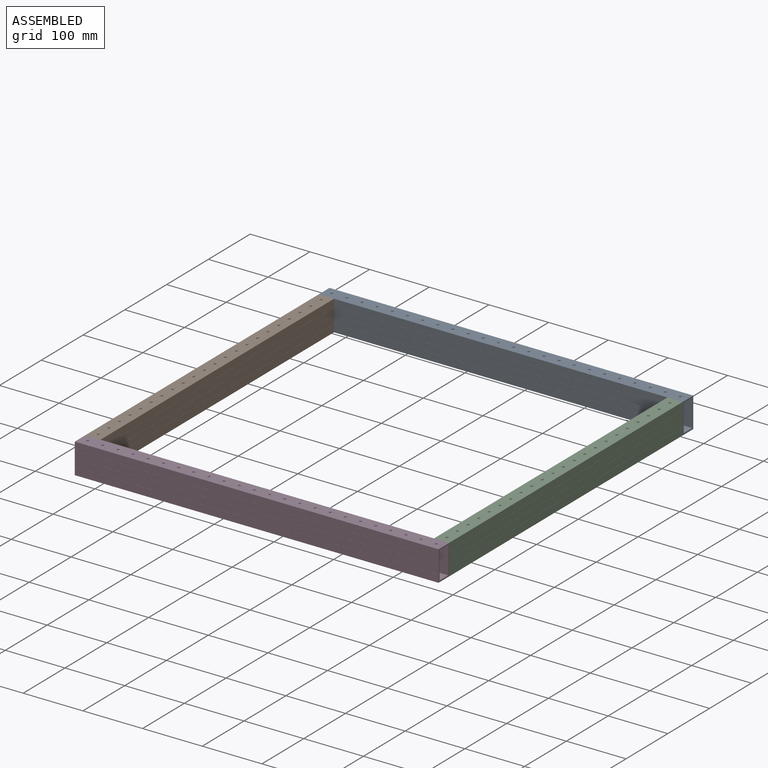
[diagram: assembled view]
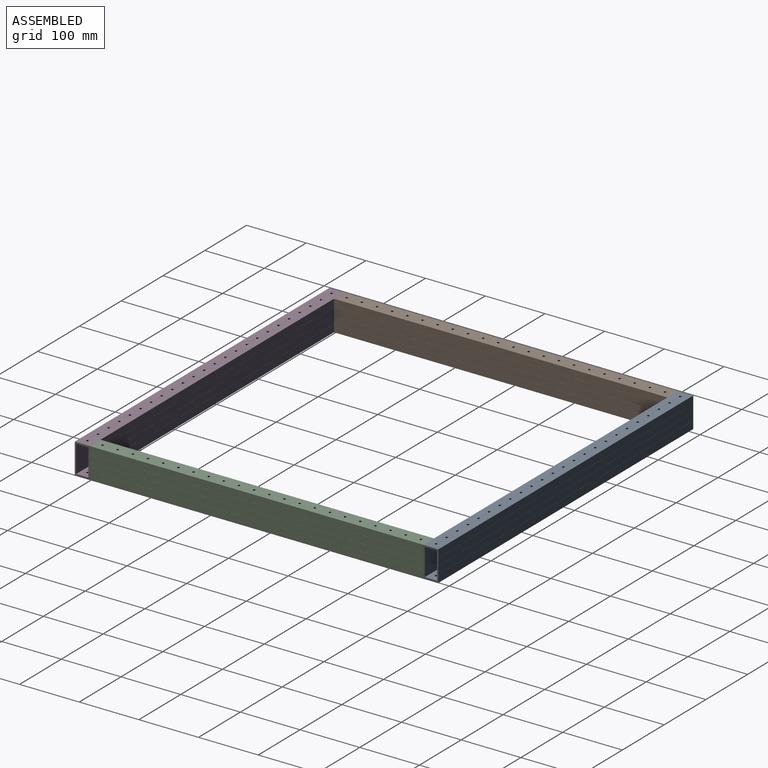
[diagram: assembled view, second angle]
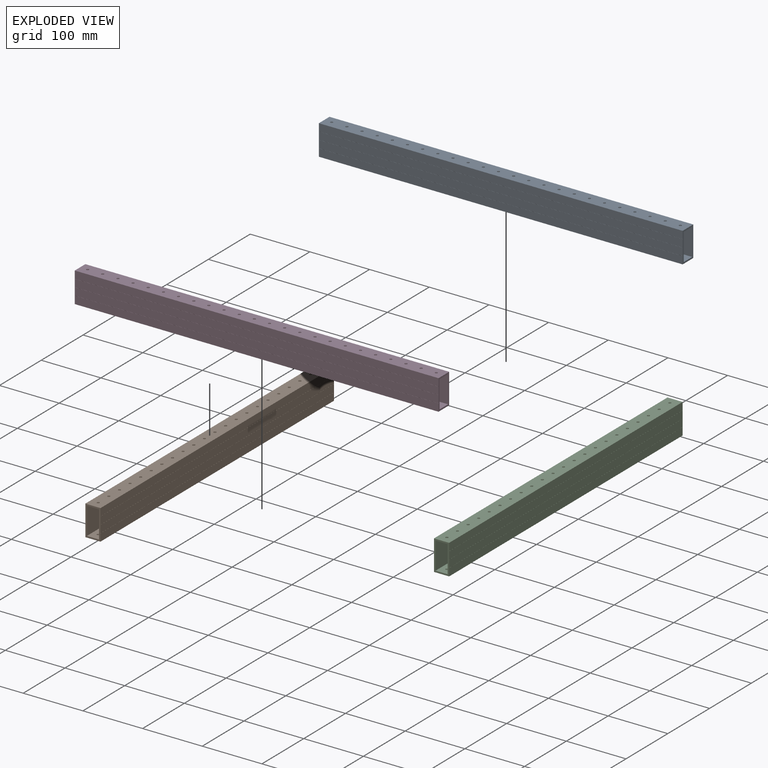
[diagram: exploded view]
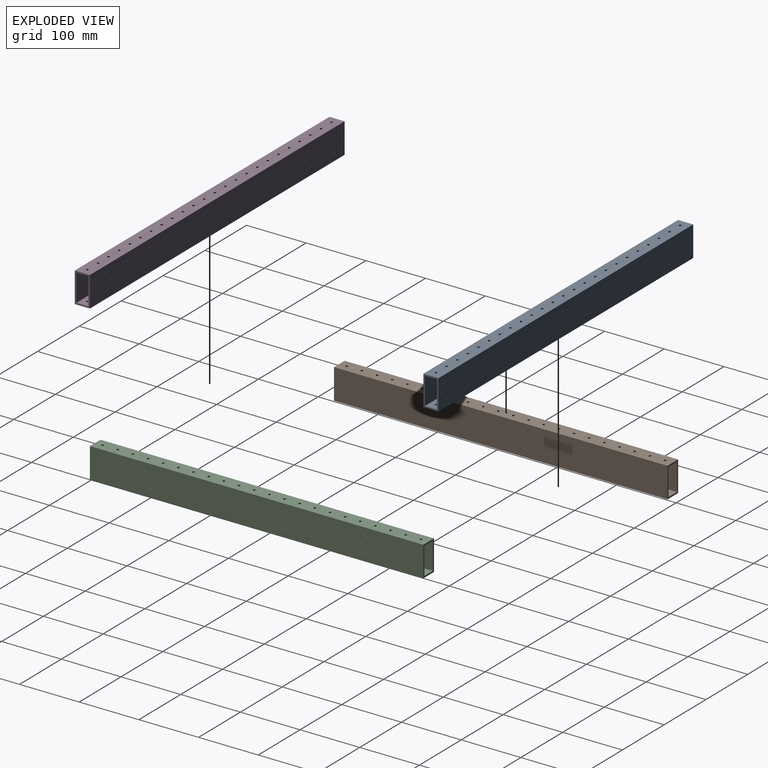
[diagram: exploded view, second angle]
ASSEMBLY  parts=4 mates=3
PART A: 178 faces, bbox 25.4x50.8x609.6 mm
  f0: plane 609.6x12.55mm, normal (-1,0,0), area 7649mm2, adj f23,f26,f80,f177
  f1: plane 609.6x12.62mm, normal (-1,0,0), area 7695.5mm2, adj f11,f24,f80,f177
  f2: plane 609.6x12.55mm, normal (-1,0,0), area 7649mm2, adj f22,f25,f80,f177
  f3: plane 609.6x12.55mm, normal (1,0,0), area 7649mm2, adj f17,f20,f80,f177
  f4: plane 609.6x12.55mm, normal (1,0,0), area 7649mm2, adj f18,f21,f80,f177
  f5: plane 609.6x12.62mm, normal (1,0,0), area 7695.5mm2, adj f10,f16,f80,f177
  f6: plane 609.6x12.62mm, normal (1,0,0), area 7695.5mm2, adj f8,f19,f80,f177
  f7: plane 609.6x12.62mm, normal (-1,0,0), area 7695.5mm2, adj f9,f27,f80,f177
  f8: plane 609.6x12.62mm, normal (0,-1,0), area 7541.5mm2, adj f6,f31,f32,f33,f34,f35,f36,f37
  f9: plane 609.6x12.62mm, normal (0,1,0), area 7541.5mm2, adj f7,f29,f55,f56,f57,f58,f59,f60
  f10: plane 609.6x12.62mm, normal (0,1,0), area 7541.5mm2, adj f5,f28,f55,f56,f57,f58,f59,f60
  f11: plane 609.6x12.62mm, normal (0,-1,0), area 7541.5mm2, adj f1,f30,f32,f33,f34,f35,f36,f37
  f12: plane 609.6x45.72mm, normal (-1,0,0), area 27870.9mm2, adj f13,f15,f80,f177
  f13: plane 609.6x20.32mm, normal (0,-1,0), area 12064mm2, adj f12,f14,f55,f56,f57,f58,f59,f60
  f14: plane 609.6x45.72mm, normal (1,0,0), area 27870.9mm2, adj f13,f15,f80,f177
  f15: plane 609.6x20.32mm, normal (0,1,0), area 12064mm2, adj f12,f14,f32,f33,f34,f35,f36,f37
  f16: plane 609.6x0.08mm, normal (0.71,-0.71,0), area 65.7mm2, adj f5,f17,f80,f177
  f17: plane 609.6x0.08mm, normal (0.71,0.71,0), area 65.7mm2, adj f3,f16,f80,f177
  f18: plane 609.6x0.08mm, normal (0.71,-0.71,0), area 65.7mm2, adj f4,f19,f80,f177
  f19: plane 609.6x0.08mm, normal (0.71,0.71,0), area 65.7mm2, adj f6,f18,f80,f177
  f20: plane 609.6x0.08mm, normal (0.71,-0.71,0), area 65.7mm2, adj f3,f21,f80,f177
  f21: plane 609.6x0.08mm, normal (0.71,0.71,0), area 65.7mm2, adj f4,f20,f80,f177
  f22: plane 609.6x0.08mm, normal (-0.71,0.71,0), area 65.7mm2, adj f2,f23,f80,f177
  f23: plane 609.6x0.08mm, normal (-0.71,-0.71,0), area 65.7mm2, adj f0,f22,f80,f177
  f24: plane 609.6x0.08mm, normal (-0.71,0.71,0), area 65.7mm2, adj f1,f25,f80,f177
  f25: plane 609.6x0.08mm, normal (-0.71,-0.71,0), area 65.7mm2, adj f2,f24,f80,f177
  f26: plane 609.6x0.08mm, normal (-0.71,0.71,0), area 65.7mm2, adj f0,f27,f80,f177
  f27: plane 609.6x0.08mm, normal (-0.71,-0.71,0), area 65.7mm2, adj f7,f26,f80,f177
  f28: plane 10.63x0.08mm, normal (-0.71,0.71,0), area 1.1mm2, adj f10,f29,f55,f177
  f29: plane 10.63x0.08mm, normal (0.71,0.71,0), area 1.1mm2, adj f9,f28,f55,f177
  f30: plane 10.63x0.08mm, normal (0.71,-0.71,0), area 1.1mm2, adj f11,f31,f32,f177
  f31: plane 10.63x0.08mm, normal (-0.71,-0.71,0), area 1.1mm2, adj f8,f30,f32,f177
  f32: cylinder r=2.07mm len=4.14mm, axis (0,1,0), area 33mm2, adj f8,f11,f15,f30,f31,f129,f130
  f33: cylinder r=2.07mm len=4.14mm, axis (0,1,0), area 33mm2, adj f8,f11,f15,f129,f130,f131,f132
  f34: cylinder r=2.07mm len=4.14mm, axis (0,1,0), area 33mm2, adj f8,f11,f15,f131,f132,f133,f134
  f35: cylinder r=2.07mm len=4.14mm, axis (0,1,0), area 33mm2, adj f8,f11,f15,f133,f134,f135,f136
  f36: cylinder r=2.07mm len=4.14mm, axis (0,1,0), area 33mm2, adj f8,f11,f15,f135,f136,f137,f138
  f37: cylinder r=2.07mm len=4.14mm, axis (0,1,0), area 33mm2, adj f8,f11,f15,f137,f138,f139,f140
  f38: cylinder r=2.07mm len=4.14mm, axis (0,1,0), area 33mm2, adj f8,f11,f15,f139,f140,f141,f142
  f39: cylinder r=2.07mm len=4.14mm, axis (0,1,0), area 33mm2, adj f8,f11,f15,f141,f142,f143,f144
  f40: cylinder r=2.07mm len=4.14mm, axis (0,1,0), area 33mm2, adj f8,f11,f15,f143,f144,f145,f146
  f41: cylinder r=2.07mm len=4.14mm, axis (0,1,0), area 33mm2, adj f8,f11,f15,f145,f146,f147,f148
  f42: cylinder r=2.07mm len=4.14mm, axis (0,1,0), area 33mm2, adj f8,f11,f15,f147,f148,f149,f150
  f43: cylinder r=2.07mm len=4.14mm, axis (0,1,0), area 33mm2, adj f8,f11,f15,f149,f150,f151,f152
  f44: cylinder r=2.07mm len=4.14mm, axis (0,1,0), area 33mm2, adj f8,f11,f15,f151,f152,f153,f154
  f45: cylinder r=2.07mm len=4.14mm, axis (0,1,0), area 33mm2, adj f8,f11,f15,f153,f154,f155,f156
  f46: cylinder r=2.07mm len=4.14mm, axis (0,1,0), area 33mm2, adj f8,f11,f15,f155,f156,f157,f158
  f47: cylinder r=2.07mm len=4.14mm, axis (0,1,0), area 33mm2, adj f8,f11,f15,f157,f158,f159,f160
  f48: cylinder r=2.07mm len=4.14mm, axis (0,1,0), area 33mm2, adj f8,f11,f15,f159,f160,f161,f162
  f49: cylinder r=2.07mm len=4.14mm, axis (0,1,0), area 33mm2, adj f8,f11,f15,f161,f162,f163,f164
  f50: cylinder r=2.07mm len=4.14mm, axis (0,1,0), area 33mm2, adj f8,f11,f15,f163,f164,f165,f166
  f51: cylinder r=2.07mm len=4.14mm, axis (0,1,0), area 33mm2, adj f8,f11,f15,f165,f166,f167,f168
  f52: cylinder r=2.07mm len=4.14mm, axis (0,1,0), area 33mm2, adj f8,f11,f15,f167,f168,f169,f170
  f53: cylinder r=2.07mm len=4.14mm, axis (0,1,0), area 33mm2, adj f8,f11,f15,f169,f170,f171,f172
  f54: cylinder r=2.07mm len=4.14mm, axis (0,1,0), area 33mm2, adj f8,f11,f15,f171,f172,f173,f174
  f55: cylinder r=2.07mm len=4.14mm, axis (0,1,0), area 33mm2, adj f9,f10,f13,f28,f29,f81,f82
  f56: cylinder r=2.07mm len=4.14mm, axis (0,1,0), area 33mm2, adj f9,f10,f13,f81,f82,f83,f84
  f57: cylinder r=2.07mm len=4.14mm, axis (0,1,0), area 33mm2, adj f9,f10,f13,f83,f84,f85,f86
  f58: cylinder r=2.07mm len=4.14mm, axis (0,1,0), area 33mm2, adj f9,f10,f13,f85,f86,f87,f88
  f59: cylinder r=2.07mm len=4.14mm, axis (0,1,0), area 33mm2, adj f9,f10,f13,f87,f88,f89,f90
  f60: cylinder r=2.07mm len=4.14mm, axis (0,1,0), area 33mm2, adj f9,f10,f13,f89,f90,f91,f92
  f61: cylinder r=2.07mm len=4.14mm, axis (0,1,0), area 33mm2, adj f9,f10,f13,f91,f92,f93,f94
  f62: cylinder r=2.07mm len=4.14mm, axis (0,1,0), area 33mm2, adj f9,f10,f13,f93,f94,f95,f96
  f63: cylinder r=2.07mm len=4.14mm, axis (0,1,0), area 33mm2, adj f9,f10,f13,f95,f96,f97,f98
  f64: cylinder r=2.07mm len=4.14mm, axis (0,1,0), area 33mm2, adj f9,f10,f13,f97,f98,f99,f100
  f65: cylinder r=2.07mm len=4.14mm, axis (0,1,0), area 33mm2, adj f9,f10,f13,f99,f100,f101,f102
  f66: cylinder r=2.07mm len=4.14mm, axis (0,1,0), area 33mm2, adj f9,f10,f13,f101,f102,f103,f104
  f67: cylinder r=2.07mm len=4.14mm, axis (0,1,0), area 33mm2, adj f9,f10,f13,f103,f104,f105,f106
  f68: cylinder r=2.07mm len=4.14mm, axis (0,1,0), area 33mm2, adj f9,f10,f13,f105,f106,f107,f108
  f69: cylinder r=2.07mm len=4.14mm, axis (0,1,0), area 33mm2, adj f9,f10,f13,f107,f108,f109,f110
  f70: cylinder r=2.07mm len=4.14mm, axis (0,1,0), area 33mm2, adj f9,f10,f13,f109,f110,f111,f112
  f71: cylinder r=2.07mm len=4.14mm, axis (0,1,0), area 33mm2, adj f9,f10,f13,f111,f112,f113,f114
  f72: cylinder r=2.07mm len=4.14mm, axis (0,1,0), area 33mm2, adj f9,f10,f13,f113,f114,f115,f116
  f73: cylinder r=2.07mm len=4.14mm, axis (0,1,0), area 33mm2, adj f9,f10,f13,f115,f116,f117,f118
  f74: cylinder r=2.07mm len=4.14mm, axis (0,1,0), area 33mm2, adj f9,f10,f13,f117,f118,f119,f120
  f75: cylinder r=2.07mm len=4.14mm, axis (0,1,0), area 33mm2, adj f9,f10,f13,f119,f120,f121,f122
  f76: cylinder r=2.07mm len=4.14mm, axis (0,1,0), area 33mm2, adj f9,f10,f13,f121,f122,f123,f124
  f77: cylinder r=2.07mm len=4.14mm, axis (0,1,0), area 33mm2, adj f9,f10,f13,f123,f124,f125,f126
  f78: cylinder r=2.07mm len=4.14mm, axis (0,1,0), area 33mm2, adj f9,f10,f13,f125,f126,f127,f128
  f79: cylinder r=2.07mm len=4.14mm, axis (0,1,0), area 33mm2, adj f8,f11,f15,f173,f174,f175,f176
  f80: plane 50.8x25.4mm, normal (0,0,-1), area 361.2mm2, adj f0,f1,f2,f3,f4,f5,f6,f7
  f81: plane 21.26x0.08mm, normal (-0.71,0.71,0), area 2.3mm2, adj f10,f55,f56,f82
  f82: plane 21.26x0.08mm, normal (0.71,0.71,0), area 2.3mm2, adj f9,f55,f56,f81
  f83: plane 21.26x0.08mm, normal (-0.71,0.71,0), area 2.3mm2, adj f10,f56,f57,f84
  f84: plane 21.26x0.08mm, normal (0.71,0.71,0), area 2.3mm2, adj f9,f56,f57,f83
  f85: plane 21.26x0.08mm, normal (-0.71,0.71,0), area 2.3mm2, adj f10,f57,f58,f86
  f86: plane 21.26x0.08mm, normal (0.71,0.71,0), area 2.3mm2, adj f9,f57,f58,f85
  f87: plane 21.26x0.08mm, normal (-0.71,0.71,0), area 2.3mm2, adj f10,f58,f59,f88
  f88: plane 21.26x0.08mm, normal (0.71,0.71,0), area 2.3mm2, adj f9,f58,f59,f87
  f89: plane 21.26x0.08mm, normal (-0.71,0.71,0), area 2.3mm2, adj f10,f59,f60,f90
  f90: plane 21.26x0.08mm, normal (0.71,0.71,0), area 2.3mm2, adj f9,f59,f60,f89
  f91: plane 21.26x0.08mm, normal (-0.71,0.71,0), area 2.3mm2, adj f10,f60,f61,f92
  f92: plane 21.26x0.08mm, normal (0.71,0.71,0), area 2.3mm2, adj f9,f60,f61,f91
  f93: plane 21.26x0.08mm, normal (-0.71,0.71,0), area 2.3mm2, adj f10,f61,f62,f94
  f94: plane 21.26x0.08mm, normal (0.71,0.71,0), area 2.3mm2, adj f9,f61,f62,f93
  f95: plane 21.26x0.08mm, normal (-0.71,0.71,0), area 2.3mm2, adj f10,f62,f63,f96
  f96: plane 21.26x0.08mm, normal (0.71,0.71,0), area 2.3mm2, adj f9,f62,f63,f95
  f97: plane 21.26x0.08mm, normal (-0.71,0.71,0), area 2.3mm2, adj f10,f63,f64,f98
  f98: plane 21.26x0.08mm, normal (0.71,0.71,0), area 2.3mm2, adj f9,f63,f64,f97
  f99: plane 21.26x0.08mm, normal (-0.71,0.71,0), area 2.3mm2, adj f10,f64,f65,f100
  f100: plane 21.26x0.08mm, normal (0.71,0.71,0), area 2.3mm2, adj f9,f64,f65,f99
  f101: plane 21.26x0.08mm, normal (-0.71,0.71,0), area 2.3mm2, adj f10,f65,f66,f102
  f102: plane 21.26x0.08mm, normal (0.71,0.71,0), area 2.3mm2, adj f9,f65,f66,f101
  f103: plane 21.26x0.08mm, normal (-0.71,0.71,0), area 2.3mm2, adj f10,f66,f67,f104
  f104: plane 21.26x0.08mm, normal (0.71,0.71,0), area 2.3mm2, adj f9,f66,f67,f103
  f105: plane 21.26x0.08mm, normal (-0.71,0.71,0), area 2.3mm2, adj f10,f67,f68,f106
  f106: plane 21.26x0.08mm, normal (0.71,0.71,0), area 2.3mm2, adj f9,f67,f68,f105
  f107: plane 21.26x0.08mm, normal (-0.71,0.71,0), area 2.3mm2, adj f10,f68,f69,f108
  f108: plane 21.26x0.08mm, normal (0.71,0.71,0), area 2.3mm2, adj f9,f68,f69,f107
  f109: plane 21.26x0.08mm, normal (-0.71,0.71,0), area 2.3mm2, adj f10,f69,f70,f110
  f110: plane 21.26x0.08mm, normal (0.71,0.71,0), area 2.3mm2, adj f9,f69,f70,f109
  f111: plane 21.26x0.08mm, normal (-0.71,0.71,0), area 2.3mm2, adj f10,f70,f71,f112
  f112: plane 21.26x0.08mm, normal (0.71,0.71,0), area 2.3mm2, adj f9,f70,f71,f111
  f113: plane 21.26x0.08mm, normal (-0.71,0.71,0), area 2.3mm2, adj f10,f71,f72,f114
  f114: plane 21.26x0.08mm, normal (0.71,0.71,0), area 2.3mm2, adj f9,f71,f72,f113
  f115: plane 21.26x0.08mm, normal (-0.71,0.71,0), area 2.3mm2, adj f10,f72,f73,f116
  f116: plane 21.26x0.08mm, normal (0.71,0.71,0), area 2.3mm2, adj f9,f72,f73,f115
  f117: plane 21.26x0.08mm, normal (-0.71,0.71,0), area 2.3mm2, adj f10,f73,f74,f118
  f118: plane 21.26x0.08mm, normal (0.71,0.71,0), area 2.3mm2, adj f9,f73,f74,f117
  f119: plane 21.26x0.08mm, normal (-0.71,0.71,0), area 2.3mm2, adj f10,f74,f75,f120
  f120: plane 21.26x0.08mm, normal (0.71,0.71,0), area 2.3mm2, adj f9,f74,f75,f119
  f121: plane 21.26x0.08mm, normal (-0.71,0.71,0), area 2.3mm2, adj f10,f75,f76,f122
  f122: plane 21.26x0.08mm, normal (0.71,0.71,0), area 2.3mm2, adj f9,f75,f76,f121
  f123: plane 21.26x0.08mm, normal (-0.71,0.71,0), area 2.3mm2, adj f10,f76,f77,f124
  f124: plane 21.26x0.08mm, normal (0.71,0.71,0), area 2.3mm2, adj f9,f76,f77,f123
  f125: plane 21.26x0.08mm, normal (-0.71,0.71,0), area 2.3mm2, adj f10,f77,f78,f126
  f126: plane 21.26x0.08mm, normal (0.71,0.71,0), area 2.3mm2, adj f9,f77,f78,f125
  f127: plane 10.63x0.08mm, normal (0.71,0.71,0), area 1.1mm2, adj f9,f78,f80,f128
  f128: plane 10.63x0.08mm, normal (-0.71,0.71,0), area 1.1mm2, adj f10,f78,f80,f127
  f129: plane 21.26x0.08mm, normal (0.71,-0.71,0), area 2.3mm2, adj f11,f32,f33,f130
  f130: plane 21.26x0.08mm, normal (-0.71,-0.71,0), area 2.3mm2, adj f8,f32,f33,f129
  f131: plane 21.26x0.08mm, normal (0.71,-0.71,0), area 2.3mm2, adj f11,f33,f34,f132
  f132: plane 21.26x0.08mm, normal (-0.71,-0.71,0), area 2.3mm2, adj f8,f33,f34,f131
  f133: plane 21.26x0.08mm, normal (0.71,-0.71,0), area 2.3mm2, adj f11,f34,f35,f134
  f134: plane 21.26x0.08mm, normal (-0.71,-0.71,0), area 2.3mm2, adj f8,f34,f35,f133
  f135: plane 21.26x0.08mm, normal (0.71,-0.71,0), area 2.3mm2, adj f11,f35,f36,f136
  f136: plane 21.26x0.08mm, normal (-0.71,-0.71,0), area 2.3mm2, adj f8,f35,f36,f135
  f137: plane 21.26x0.08mm, normal (0.71,-0.71,0), area 2.3mm2, adj f11,f36,f37,f138
  f138: plane 21.26x0.08mm, normal (-0.71,-0.71,0), area 2.3mm2, adj f8,f36,f37,f137
  f139: plane 21.26x0.08mm, normal (0.71,-0.71,0), area 2.3mm2, adj f11,f37,f38,f140
  f140: plane 21.26x0.08mm, normal (-0.71,-0.71,0), area 2.3mm2, adj f8,f37,f38,f139
  f141: plane 21.26x0.08mm, normal (0.71,-0.71,0), area 2.3mm2, adj f11,f38,f39,f142
  f142: plane 21.26x0.08mm, normal (-0.71,-0.71,0), area 2.3mm2, adj f8,f38,f39,f141
  f143: plane 21.26x0.08mm, normal (0.71,-0.71,0), area 2.3mm2, adj f11,f39,f40,f144
  f144: plane 21.26x0.08mm, normal (-0.71,-0.71,0), area 2.3mm2, adj f8,f39,f40,f143
  f145: plane 21.26x0.08mm, normal (0.71,-0.71,0), area 2.3mm2, adj f11,f40,f41,f146
  f146: plane 21.26x0.08mm, normal (-0.71,-0.71,0), area 2.3mm2, adj f8,f40,f41,f145
  f147: plane 21.26x0.08mm, normal (0.71,-0.71,0), area 2.3mm2, adj f11,f41,f42,f148
  f148: plane 21.26x0.08mm, normal (-0.71,-0.71,0), area 2.3mm2, adj f8,f41,f42,f147
  f149: plane 21.26x0.08mm, normal (0.71,-0.71,0), area 2.3mm2, adj f11,f42,f43,f150
  f150: plane 21.26x0.08mm, normal (-0.71,-0.71,0), area 2.3mm2, adj f8,f42,f43,f149
  f151: plane 21.26x0.08mm, normal (0.71,-0.71,0), area 2.3mm2, adj f11,f43,f44,f152
  f152: plane 21.26x0.08mm, normal (-0.71,-0.71,0), area 2.3mm2, adj f8,f43,f44,f151
  f153: plane 21.26x0.08mm, normal (0.71,-0.71,0), area 2.3mm2, adj f11,f44,f45,f154
  f154: plane 21.26x0.08mm, normal (-0.71,-0.71,0), area 2.3mm2, adj f8,f44,f45,f153
  f155: plane 21.26x0.08mm, normal (0.71,-0.71,0), area 2.3mm2, adj f11,f45,f46,f156
  f156: plane 21.26x0.08mm, normal (-0.71,-0.71,0), area 2.3mm2, adj f8,f45,f46,f155
  f157: plane 21.26x0.08mm, normal (0.71,-0.71,0), area 2.3mm2, adj f11,f46,f47,f158
  f158: plane 21.26x0.08mm, normal (-0.71,-0.71,0), area 2.3mm2, adj f8,f46,f47,f157
  f159: plane 21.26x0.08mm, normal (0.71,-0.71,0), area 2.3mm2, adj f11,f47,f48,f160
  f160: plane 21.26x0.08mm, normal (-0.71,-0.71,0), area 2.3mm2, adj f8,f47,f48,f159
  f161: plane 21.26x0.08mm, normal (0.71,-0.71,0), area 2.3mm2, adj f11,f48,f49,f162
  f162: plane 21.26x0.08mm, normal (-0.71,-0.71,0), area 2.3mm2, adj f8,f48,f49,f161
  f163: plane 21.26x0.08mm, normal (0.71,-0.71,0), area 2.3mm2, adj f11,f49,f50,f164
  f164: plane 21.26x0.08mm, normal (-0.71,-0.71,0), area 2.3mm2, adj f8,f49,f50,f163
  f165: plane 21.26x0.08mm, normal (0.71,-0.71,0), area 2.3mm2, adj f11,f50,f51,f166
  f166: plane 21.26x0.08mm, normal (-0.71,-0.71,0), area 2.3mm2, adj f8,f50,f51,f165
  f167: plane 21.26x0.08mm, normal (0.71,-0.71,0), area 2.3mm2, adj f11,f51,f52,f168
  f168: plane 21.26x0.08mm, normal (-0.71,-0.71,0), area 2.3mm2, adj f8,f51,f52,f167
  f169: plane 21.26x0.08mm, normal (0.71,-0.71,0), area 2.3mm2, adj f11,f52,f53,f170
  f170: plane 21.26x0.08mm, normal (-0.71,-0.71,0), area 2.3mm2, adj f8,f52,f53,f169
  f171: plane 21.26x0.08mm, normal (0.71,-0.71,0), area 2.3mm2, adj f11,f53,f54,f172
  f172: plane 21.26x0.08mm, normal (-0.71,-0.71,0), area 2.3mm2, adj f8,f53,f54,f171
  f173: plane 21.26x0.08mm, normal (0.71,-0.71,0), area 2.3mm2, adj f11,f54,f79,f174
  f174: plane 21.26x0.08mm, normal (-0.71,-0.71,0), area 2.3mm2, adj f8,f54,f79,f173
  f175: plane 10.63x0.08mm, normal (-0.71,-0.71,0), area 1.1mm2, adj f8,f79,f80,f176
  f176: plane 10.63x0.08mm, normal (0.71,-0.71,0), area 1.1mm2, adj f11,f79,f80,f175
  f177: plane 50.8x25.4mm, normal (0,0,1), area 361.2mm2, adj f0,f1,f2,f3,f4,f5,f6,f7
PART B: 166 faces, bbox 25.4x50.8x558.8 mm
  f0: plane 558.8x12.55mm, normal (-1,0,0), area 7011.6mm2, adj f23,f26,f76,f165
  f1: plane 558.8x12.62mm, normal (-1,0,0), area 7054.2mm2, adj f11,f24,f76,f165
  f2: plane 558.8x12.55mm, normal (-1,0,0), area 7011.6mm2, adj f22,f25,f76,f165
  f3: plane 558.8x12.55mm, normal (1,0,0), area 7011.6mm2, adj f17,f20,f76,f165
  f4: plane 558.8x12.55mm, normal (1,0,0), area 7011.6mm2, adj f18,f21,f76,f165
  f5: plane 558.8x12.62mm, normal (1,0,0), area 7054.2mm2, adj f10,f16,f76,f165
  f6: plane 558.8x12.62mm, normal (1,0,0), area 7054.2mm2, adj f8,f19,f76,f165
  f7: plane 558.8x12.62mm, normal (-1,0,0), area 7054.2mm2, adj f9,f27,f76,f165
  f8: plane 558.8x12.62mm, normal (0,-1,0), area 6913mm2, adj f6,f31,f32,f33,f34,f35,f36,f37
  f9: plane 558.8x12.62mm, normal (0,1,0), area 6913mm2, adj f7,f29,f53,f54,f55,f56,f57,f58
  f10: plane 558.8x12.62mm, normal (0,1,0), area 6913mm2, adj f5,f28,f53,f54,f55,f56,f57,f58
  f11: plane 558.8x12.62mm, normal (0,-1,0), area 6913mm2, adj f1,f30,f32,f33,f34,f35,f36,f37
  f12: plane 558.8x45.72mm, normal (-1,0,0), area 25548.3mm2, adj f13,f15,f76,f165
  f13: plane 558.8x20.32mm, normal (0,-1,0), area 11058.6mm2, adj f12,f14,f53,f54,f55,f56,f57,f58
  f14: plane 558.8x45.72mm, normal (1,0,0), area 25548.3mm2, adj f13,f15,f76,f165
  f15: plane 558.8x20.32mm, normal (0,1,0), area 11058.6mm2, adj f12,f14,f32,f33,f34,f35,f36,f37
  f16: plane 558.8x0.08mm, normal (0.71,-0.71,0), area 60.2mm2, adj f5,f17,f76,f165
  f17: plane 558.8x0.08mm, normal (0.71,0.71,0), area 60.2mm2, adj f3,f16,f76,f165
  f18: plane 558.8x0.08mm, normal (0.71,-0.71,0), area 60.2mm2, adj f4,f19,f76,f165
  f19: plane 558.8x0.08mm, normal (0.71,0.71,0), area 60.2mm2, adj f6,f18,f76,f165
  f20: plane 558.8x0.08mm, normal (0.71,-0.71,0), area 60.2mm2, adj f3,f21,f76,f165
  f21: plane 558.8x0.08mm, normal (0.71,0.71,0), area 60.2mm2, adj f4,f20,f76,f165
  f22: plane 558.8x0.08mm, normal (-0.71,0.71,0), area 60.2mm2, adj f2,f23,f76,f165
  f23: plane 558.8x0.08mm, normal (-0.71,-0.71,0), area 60.2mm2, adj f0,f22,f76,f165
  f24: plane 558.8x0.08mm, normal (-0.71,0.71,0), area 60.2mm2, adj f1,f25,f76,f165
  f25: plane 558.8x0.08mm, normal (-0.71,-0.71,0), area 60.2mm2, adj f2,f24,f76,f165
  f26: plane 558.8x0.08mm, normal (-0.71,0.71,0), area 60.2mm2, adj f0,f27,f76,f165
  f27: plane 558.8x0.08mm, normal (-0.71,-0.71,0), area 60.2mm2, adj f7,f26,f76,f165
  f28: plane 10.63x0.08mm, normal (-0.71,0.71,0), area 1.1mm2, adj f10,f29,f53,f165
  f29: plane 10.63x0.08mm, normal (0.71,0.71,0), area 1.1mm2, adj f9,f28,f53,f165
  f30: plane 10.63x0.08mm, normal (0.71,-0.71,0), area 1.1mm2, adj f11,f31,f32,f165
  f31: plane 10.63x0.08mm, normal (-0.71,-0.71,0), area 1.1mm2, adj f8,f30,f32,f165
  f32: cylinder r=2.07mm len=4.14mm, axis (0,1,0), area 33mm2, adj f8,f11,f15,f30,f31,f121,f122
  f33: cylinder r=2.07mm len=4.14mm, axis (0,1,0), area 33mm2, adj f8,f11,f15,f121,f122,f123,f124
  f34: cylinder r=2.07mm len=4.14mm, axis (0,1,0), area 33mm2, adj f8,f11,f15,f123,f124,f125,f126
  f35: cylinder r=2.07mm len=4.14mm, axis (0,1,0), area 33mm2, adj f8,f11,f15,f125,f126,f127,f128
  f36: cylinder r=2.07mm len=4.14mm, axis (0,1,0), area 33mm2, adj f8,f11,f15,f127,f128,f129,f130
  f37: cylinder r=2.07mm len=4.14mm, axis (0,1,0), area 33mm2, adj f8,f11,f15,f129,f130,f131,f132
  f38: cylinder r=2.07mm len=4.14mm, axis (0,1,0), area 33mm2, adj f8,f11,f15,f131,f132,f133,f134
  f39: cylinder r=2.07mm len=4.14mm, axis (0,1,0), area 33mm2, adj f8,f11,f15,f133,f134,f135,f136
  f40: cylinder r=2.07mm len=4.14mm, axis (0,1,0), area 33mm2, adj f8,f11,f15,f135,f136,f137,f138
  f41: cylinder r=2.07mm len=4.14mm, axis (0,1,0), area 33mm2, adj f8,f11,f15,f137,f138,f139,f140
  f42: cylinder r=2.07mm len=4.14mm, axis (0,1,0), area 33mm2, adj f8,f11,f15,f139,f140,f141,f142
  f43: cylinder r=2.07mm len=4.14mm, axis (0,1,0), area 33mm2, adj f8,f11,f15,f141,f142,f143,f144
  f44: cylinder r=2.07mm len=4.14mm, axis (0,1,0), area 33mm2, adj f8,f11,f15,f143,f144,f145,f146
  f45: cylinder r=2.07mm len=4.14mm, axis (0,1,0), area 33mm2, adj f8,f11,f15,f145,f146,f147,f148
  f46: cylinder r=2.07mm len=4.14mm, axis (0,1,0), area 33mm2, adj f8,f11,f15,f147,f148,f149,f150
  f47: cylinder r=2.07mm len=4.14mm, axis (0,1,0), area 33mm2, adj f8,f11,f15,f149,f150,f151,f152
  f48: cylinder r=2.07mm len=4.14mm, axis (0,1,0), area 33mm2, adj f8,f11,f15,f151,f152,f153,f154
  f49: cylinder r=2.07mm len=4.14mm, axis (0,1,0), area 33mm2, adj f8,f11,f15,f153,f154,f155,f156
  f50: cylinder r=2.07mm len=4.14mm, axis (0,1,0), area 33mm2, adj f8,f11,f15,f155,f156,f157,f158
  f51: cylinder r=2.07mm len=4.14mm, axis (0,1,0), area 33mm2, adj f8,f11,f15,f157,f158,f159,f160
  f52: cylinder r=2.07mm len=4.14mm, axis (0,1,0), area 33mm2, adj f8,f11,f15,f159,f160,f161,f162
  f53: cylinder r=2.07mm len=4.14mm, axis (0,1,0), area 33mm2, adj f9,f10,f13,f28,f29,f77,f78
  f54: cylinder r=2.07mm len=4.14mm, axis (0,1,0), area 33mm2, adj f9,f10,f13,f77,f78,f79,f80
  f55: cylinder r=2.07mm len=4.14mm, axis (0,1,0), area 33mm2, adj f9,f10,f13,f79,f80,f81,f82
  f56: cylinder r=2.07mm len=4.14mm, axis (0,1,0), area 33mm2, adj f9,f10,f13,f81,f82,f83,f84
  f57: cylinder r=2.07mm len=4.14mm, axis (0,1,0), area 33mm2, adj f9,f10,f13,f83,f84,f85,f86
  f58: cylinder r=2.07mm len=4.14mm, axis (0,1,0), area 33mm2, adj f9,f10,f13,f85,f86,f87,f88
  f59: cylinder r=2.07mm len=4.14mm, axis (0,1,0), area 33mm2, adj f9,f10,f13,f87,f88,f89,f90
  f60: cylinder r=2.07mm len=4.14mm, axis (0,1,0), area 33mm2, adj f9,f10,f13,f89,f90,f91,f92
  f61: cylinder r=2.07mm len=4.14mm, axis (0,1,0), area 33mm2, adj f9,f10,f13,f91,f92,f93,f94
  f62: cylinder r=2.07mm len=4.14mm, axis (0,1,0), area 33mm2, adj f9,f10,f13,f93,f94,f95,f96
  f63: cylinder r=2.07mm len=4.14mm, axis (0,1,0), area 33mm2, adj f9,f10,f13,f95,f96,f97,f98
  f64: cylinder r=2.07mm len=4.14mm, axis (0,1,0), area 33mm2, adj f9,f10,f13,f97,f98,f99,f100
  f65: cylinder r=2.07mm len=4.14mm, axis (0,1,0), area 33mm2, adj f9,f10,f13,f99,f100,f101,f102
  f66: cylinder r=2.07mm len=4.14mm, axis (0,1,0), area 33mm2, adj f9,f10,f13,f101,f102,f103,f104
  f67: cylinder r=2.07mm len=4.14mm, axis (0,1,0), area 33mm2, adj f9,f10,f13,f103,f104,f105,f106
  f68: cylinder r=2.07mm len=4.14mm, axis (0,1,0), area 33mm2, adj f9,f10,f13,f105,f106,f107,f108
  f69: cylinder r=2.07mm len=4.14mm, axis (0,1,0), area 33mm2, adj f9,f10,f13,f107,f108,f109,f110
  f70: cylinder r=2.07mm len=4.14mm, axis (0,1,0), area 33mm2, adj f9,f10,f13,f109,f110,f111,f112
  f71: cylinder r=2.07mm len=4.14mm, axis (0,1,0), area 33mm2, adj f9,f10,f13,f111,f112,f113,f114
  f72: cylinder r=2.07mm len=4.14mm, axis (0,1,0), area 33mm2, adj f9,f10,f13,f113,f114,f115,f116
  f73: cylinder r=2.07mm len=4.14mm, axis (0,1,0), area 33mm2, adj f9,f10,f13,f115,f116,f117,f118
  f74: cylinder r=2.07mm len=4.14mm, axis (0,1,0), area 33mm2, adj f9,f10,f13,f117,f118,f119,f120
  f75: cylinder r=2.07mm len=4.14mm, axis (0,1,0), area 33mm2, adj f8,f11,f15,f161,f162,f163,f164
  f76: plane 50.8x25.4mm, normal (0,0,-1), area 361.2mm2, adj f0,f1,f2,f3,f4,f5,f6,f7
  f77: plane 21.26x0.08mm, normal (-0.71,0.71,0), area 2.3mm2, adj f10,f53,f54,f78
  f78: plane 21.26x0.08mm, normal (0.71,0.71,0), area 2.3mm2, adj f9,f53,f54,f77
  f79: plane 21.26x0.08mm, normal (-0.71,0.71,0), area 2.3mm2, adj f10,f54,f55,f80
  f80: plane 21.26x0.08mm, normal (0.71,0.71,0), area 2.3mm2, adj f9,f54,f55,f79
  f81: plane 21.26x0.08mm, normal (-0.71,0.71,0), area 2.3mm2, adj f10,f55,f56,f82
  f82: plane 21.26x0.08mm, normal (0.71,0.71,0), area 2.3mm2, adj f9,f55,f56,f81
  f83: plane 21.26x0.08mm, normal (-0.71,0.71,0), area 2.3mm2, adj f10,f56,f57,f84
  f84: plane 21.26x0.08mm, normal (0.71,0.71,0), area 2.3mm2, adj f9,f56,f57,f83
  f85: plane 21.26x0.08mm, normal (-0.71,0.71,0), area 2.3mm2, adj f10,f57,f58,f86
  f86: plane 21.26x0.08mm, normal (0.71,0.71,0), area 2.3mm2, adj f9,f57,f58,f85
  f87: plane 21.26x0.08mm, normal (-0.71,0.71,0), area 2.3mm2, adj f10,f58,f59,f88
  f88: plane 21.26x0.08mm, normal (0.71,0.71,0), area 2.3mm2, adj f9,f58,f59,f87
  f89: plane 21.26x0.08mm, normal (-0.71,0.71,0), area 2.3mm2, adj f10,f59,f60,f90
  f90: plane 21.26x0.08mm, normal (0.71,0.71,0), area 2.3mm2, adj f9,f59,f60,f89
  f91: plane 21.26x0.08mm, normal (-0.71,0.71,0), area 2.3mm2, adj f10,f60,f61,f92
  f92: plane 21.26x0.08mm, normal (0.71,0.71,0), area 2.3mm2, adj f9,f60,f61,f91
  f93: plane 21.26x0.08mm, normal (-0.71,0.71,0), area 2.3mm2, adj f10,f61,f62,f94
  f94: plane 21.26x0.08mm, normal (0.71,0.71,0), area 2.3mm2, adj f9,f61,f62,f93
  f95: plane 21.26x0.08mm, normal (-0.71,0.71,0), area 2.3mm2, adj f10,f62,f63,f96
  f96: plane 21.26x0.08mm, normal (0.71,0.71,0), area 2.3mm2, adj f9,f62,f63,f95
  f97: plane 21.26x0.08mm, normal (-0.71,0.71,0), area 2.3mm2, adj f10,f63,f64,f98
  f98: plane 21.26x0.08mm, normal (0.71,0.71,0), area 2.3mm2, adj f9,f63,f64,f97
  f99: plane 21.26x0.08mm, normal (-0.71,0.71,0), area 2.3mm2, adj f10,f64,f65,f100
  f100: plane 21.26x0.08mm, normal (0.71,0.71,0), area 2.3mm2, adj f9,f64,f65,f99
  f101: plane 21.26x0.08mm, normal (-0.71,0.71,0), area 2.3mm2, adj f10,f65,f66,f102
  f102: plane 21.26x0.08mm, normal (0.71,0.71,0), area 2.3mm2, adj f9,f65,f66,f101
  f103: plane 21.26x0.08mm, normal (-0.71,0.71,0), area 2.3mm2, adj f10,f66,f67,f104
  f104: plane 21.26x0.08mm, normal (0.71,0.71,0), area 2.3mm2, adj f9,f66,f67,f103
  f105: plane 21.26x0.08mm, normal (-0.71,0.71,0), area 2.3mm2, adj f10,f67,f68,f106
  f106: plane 21.26x0.08mm, normal (0.71,0.71,0), area 2.3mm2, adj f9,f67,f68,f105
  f107: plane 21.26x0.08mm, normal (-0.71,0.71,0), area 2.3mm2, adj f10,f68,f69,f108
  f108: plane 21.26x0.08mm, normal (0.71,0.71,0), area 2.3mm2, adj f9,f68,f69,f107
  f109: plane 21.26x0.08mm, normal (-0.71,0.71,0), area 2.3mm2, adj f10,f69,f70,f110
  f110: plane 21.26x0.08mm, normal (0.71,0.71,0), area 2.3mm2, adj f9,f69,f70,f109
  f111: plane 21.26x0.08mm, normal (-0.71,0.71,0), area 2.3mm2, adj f10,f70,f71,f112
  f112: plane 21.26x0.08mm, normal (0.71,0.71,0), area 2.3mm2, adj f9,f70,f71,f111
  f113: plane 21.26x0.08mm, normal (-0.71,0.71,0), area 2.3mm2, adj f10,f71,f72,f114
  f114: plane 21.26x0.08mm, normal (0.71,0.71,0), area 2.3mm2, adj f9,f71,f72,f113
  f115: plane 21.26x0.08mm, normal (-0.71,0.71,0), area 2.3mm2, adj f10,f72,f73,f116
  f116: plane 21.26x0.08mm, normal (0.71,0.71,0), area 2.3mm2, adj f9,f72,f73,f115
  f117: plane 21.26x0.08mm, normal (-0.71,0.71,0), area 2.3mm2, adj f10,f73,f74,f118
  f118: plane 21.26x0.08mm, normal (0.71,0.71,0), area 2.3mm2, adj f9,f73,f74,f117
  f119: plane 10.63x0.08mm, normal (0.71,0.71,0), area 1.1mm2, adj f9,f74,f76,f120
  f120: plane 10.63x0.08mm, normal (-0.71,0.71,0), area 1.1mm2, adj f10,f74,f76,f119
  f121: plane 21.26x0.08mm, normal (0.71,-0.71,0), area 2.3mm2, adj f11,f32,f33,f122
  f122: plane 21.26x0.08mm, normal (-0.71,-0.71,0), area 2.3mm2, adj f8,f32,f33,f121
  f123: plane 21.26x0.08mm, normal (0.71,-0.71,0), area 2.3mm2, adj f11,f33,f34,f124
  f124: plane 21.26x0.08mm, normal (-0.71,-0.71,0), area 2.3mm2, adj f8,f33,f34,f123
  f125: plane 21.26x0.08mm, normal (0.71,-0.71,0), area 2.3mm2, adj f11,f34,f35,f126
  f126: plane 21.26x0.08mm, normal (-0.71,-0.71,0), area 2.3mm2, adj f8,f34,f35,f125
  f127: plane 21.26x0.08mm, normal (0.71,-0.71,0), area 2.3mm2, adj f11,f35,f36,f128
  f128: plane 21.26x0.08mm, normal (-0.71,-0.71,0), area 2.3mm2, adj f8,f35,f36,f127
  f129: plane 21.26x0.08mm, normal (0.71,-0.71,0), area 2.3mm2, adj f11,f36,f37,f130
  f130: plane 21.26x0.08mm, normal (-0.71,-0.71,0), area 2.3mm2, adj f8,f36,f37,f129
  f131: plane 21.26x0.08mm, normal (0.71,-0.71,0), area 2.3mm2, adj f11,f37,f38,f132
  f132: plane 21.26x0.08mm, normal (-0.71,-0.71,0), area 2.3mm2, adj f8,f37,f38,f131
  f133: plane 21.26x0.08mm, normal (0.71,-0.71,0), area 2.3mm2, adj f11,f38,f39,f134
  f134: plane 21.26x0.08mm, normal (-0.71,-0.71,0), area 2.3mm2, adj f8,f38,f39,f133
  f135: plane 21.26x0.08mm, normal (0.71,-0.71,0), area 2.3mm2, adj f11,f39,f40,f136
  f136: plane 21.26x0.08mm, normal (-0.71,-0.71,0), area 2.3mm2, adj f8,f39,f40,f135
  f137: plane 21.26x0.08mm, normal (0.71,-0.71,0), area 2.3mm2, adj f11,f40,f41,f138
  f138: plane 21.26x0.08mm, normal (-0.71,-0.71,0), area 2.3mm2, adj f8,f40,f41,f137
  f139: plane 21.26x0.08mm, normal (0.71,-0.71,0), area 2.3mm2, adj f11,f41,f42,f140
  f140: plane 21.26x0.08mm, normal (-0.71,-0.71,0), area 2.3mm2, adj f8,f41,f42,f139
  f141: plane 21.26x0.08mm, normal (0.71,-0.71,0), area 2.3mm2, adj f11,f42,f43,f142
  f142: plane 21.26x0.08mm, normal (-0.71,-0.71,0), area 2.3mm2, adj f8,f42,f43,f141
  f143: plane 21.26x0.08mm, normal (0.71,-0.71,0), area 2.3mm2, adj f11,f43,f44,f144
  f144: plane 21.26x0.08mm, normal (-0.71,-0.71,0), area 2.3mm2, adj f8,f43,f44,f143
  f145: plane 21.26x0.08mm, normal (0.71,-0.71,0), area 2.3mm2, adj f11,f44,f45,f146
  f146: plane 21.26x0.08mm, normal (-0.71,-0.71,0), area 2.3mm2, adj f8,f44,f45,f145
  f147: plane 21.26x0.08mm, normal (0.71,-0.71,0), area 2.3mm2, adj f11,f45,f46,f148
  f148: plane 21.26x0.08mm, normal (-0.71,-0.71,0), area 2.3mm2, adj f8,f45,f46,f147
  f149: plane 21.26x0.08mm, normal (0.71,-0.71,0), area 2.3mm2, adj f11,f46,f47,f150
  f150: plane 21.26x0.08mm, normal (-0.71,-0.71,0), area 2.3mm2, adj f8,f46,f47,f149
  f151: plane 21.26x0.08mm, normal (0.71,-0.71,0), area 2.3mm2, adj f11,f47,f48,f152
  f152: plane 21.26x0.08mm, normal (-0.71,-0.71,0), area 2.3mm2, adj f8,f47,f48,f151
  f153: plane 21.26x0.08mm, normal (0.71,-0.71,0), area 2.3mm2, adj f11,f48,f49,f154
  f154: plane 21.26x0.08mm, normal (-0.71,-0.71,0), area 2.3mm2, adj f8,f48,f49,f153
  f155: plane 21.26x0.08mm, normal (0.71,-0.71,0), area 2.3mm2, adj f11,f49,f50,f156
  f156: plane 21.26x0.08mm, normal (-0.71,-0.71,0), area 2.3mm2, adj f8,f49,f50,f155
  f157: plane 21.26x0.08mm, normal (0.71,-0.71,0), area 2.3mm2, adj f11,f50,f51,f158
  f158: plane 21.26x0.08mm, normal (-0.71,-0.71,0), area 2.3mm2, adj f8,f50,f51,f157
  f159: plane 21.26x0.08mm, normal (0.71,-0.71,0), area 2.3mm2, adj f11,f51,f52,f160
  f160: plane 21.26x0.08mm, normal (-0.71,-0.71,0), area 2.3mm2, adj f8,f51,f52,f159
  f161: plane 21.26x0.08mm, normal (0.71,-0.71,0), area 2.3mm2, adj f11,f52,f75,f162
  f162: plane 21.26x0.08mm, normal (-0.71,-0.71,0), area 2.3mm2, adj f8,f52,f75,f161
  f163: plane 10.63x0.08mm, normal (-0.71,-0.71,0), area 1.1mm2, adj f8,f75,f76,f164
  f164: plane 10.63x0.08mm, normal (0.71,-0.71,0), area 1.1mm2, adj f11,f75,f76,f163
  f165: plane 50.8x25.4mm, normal (0,0,1), area 361.2mm2, adj f0,f1,f2,f3,f4,f5,f6,f7
PART C: same geometry as B
PART D: same geometry as A
PLACE A rot(axis=(-0.58,-0.58,0.58),120deg) t=(-444.5,12.7,-25.4)mm
PLACE B rot(axis=(-1,0,0),90deg) t=(-292.1,190.5,-25.4)mm
PLACE C rot(axis=(-1,0,0),90deg) t=(292.1,190.5,-25.4)mm
PLACE D rot(axis=(-0.58,-0.58,0.58),120deg) t=(-444.5,-571.5,-25.4)mm
MATE fastened C.f8 <-> D.f8  axis (0,0,1) through (304.8,-558.8,0)mm
MATE fastened C.f8 <-> A.f11  axis (0,0,1) through (304.8,0,0)mm
MATE fastened B.f11 <-> A.f11  axis (0,0,1) through (-304.8,0,0)mm
